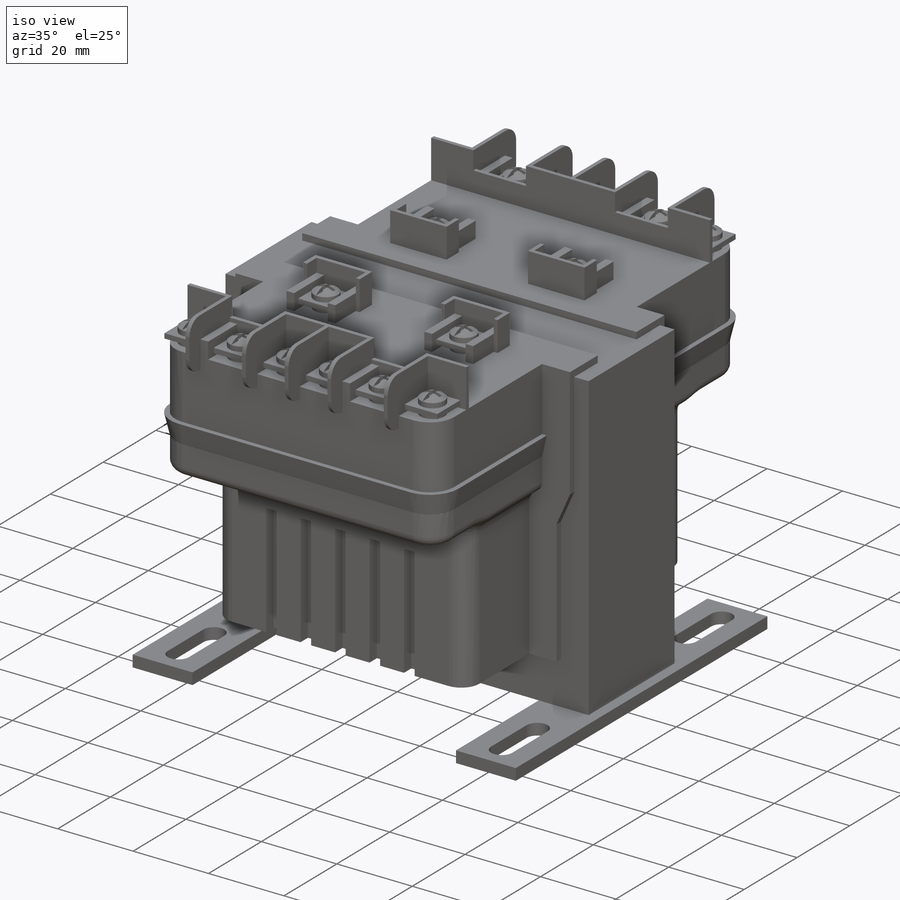
[diagram: iso view]
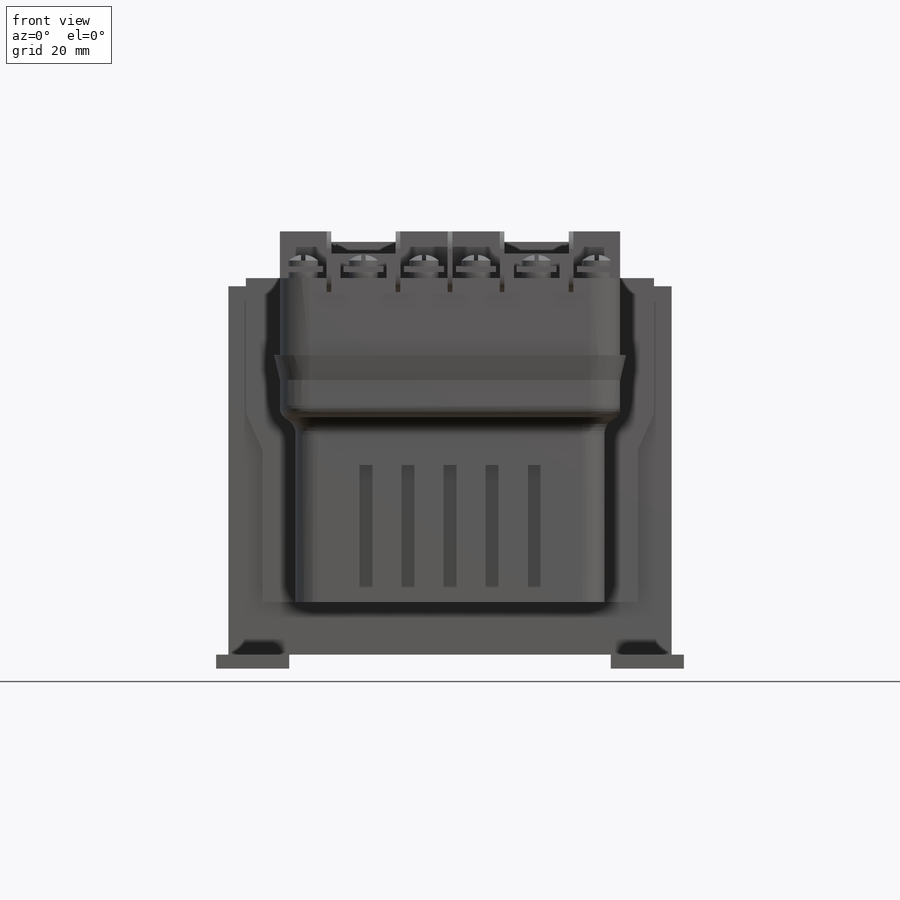
[diagram: front view]
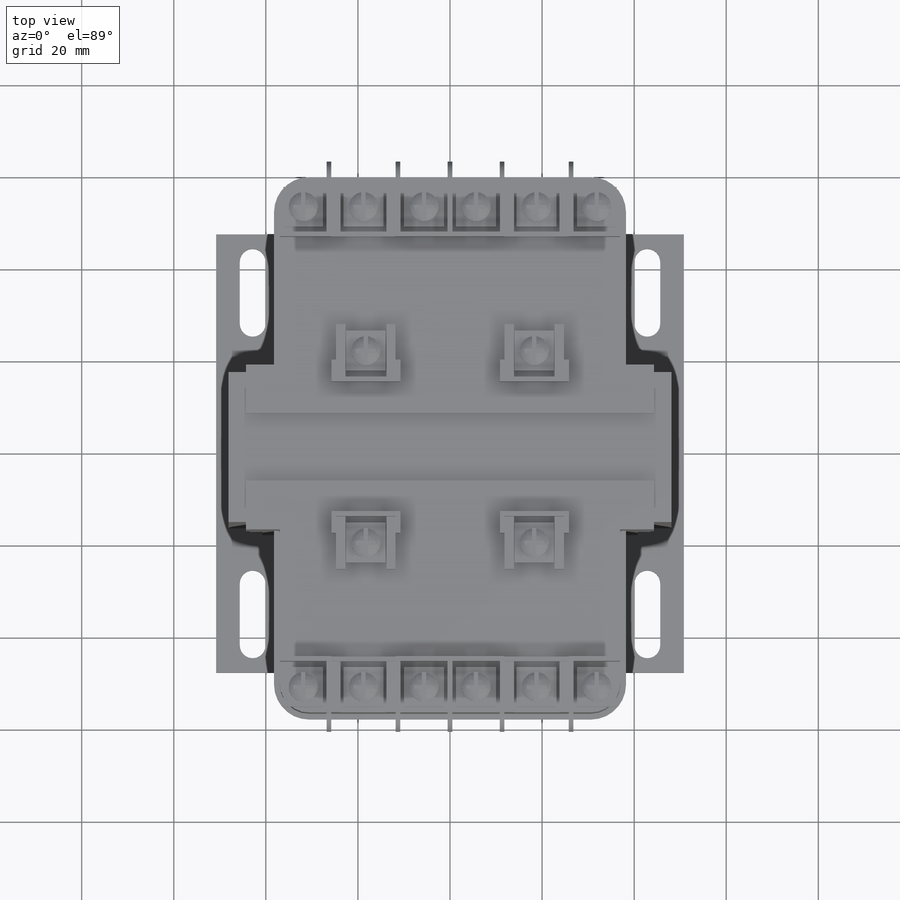
[diagram: top view]
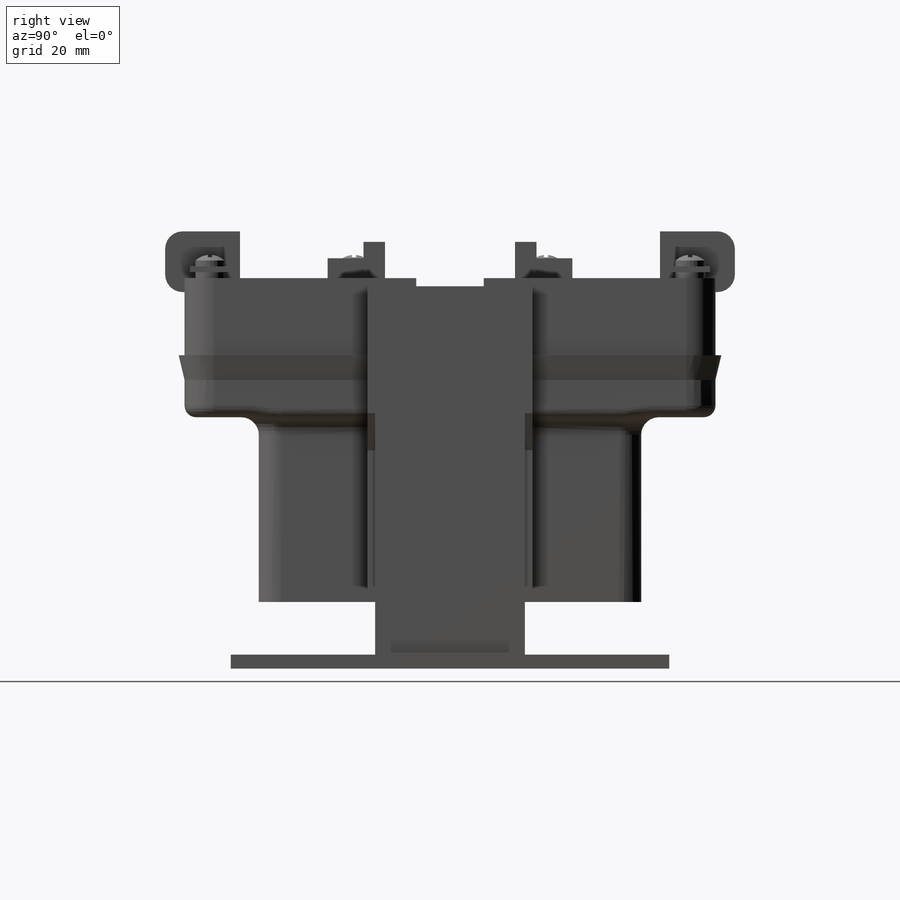
[diagram: right view]
SOLIDWORKS PART (.sldprt)
format: sldprt  version: not decoded by parser v0  size: 1,459,712 bytes
history: native  units: mm
features: sketch x18, extrude x10, dome x8, cut_extrude x6, fillet x4, plane x2, mirror x2, material x1, sweep x1 + 1 further entry (+11 scaffold rows collapsed)
feature tree (64):
  scaffold x11  (default folders/planes/origin — collapsed)
  material  "Plain Carbon Steel"
  sketch  "Sketch2"  dims[c1.D1=~130.476089mm c1.D2=~148.464939mm c2.D1=96.266mm c2.D2=80.01mm]
  extrude  "Boss-Extrude1"  Depth=32.512mm
  sketch  "Sketch3"  dims[c1.D1=~53.611189mm c1.D2=~9.240303mm c2.D1=15.875mm c2.D2=95.25mm c2.D3=101.6mm]
  extrude  "Boss-Extrude2"  Depth=3.048mm
  sketch  "Sketch4"  dims[c1.D2=2.794mm c1.D1=5.588mm c2.D2=~7.816948mm c3.D2=19.05mm c3.D3=69.85mm]
  cut_extrude  "Cut-Extrude1"  [1 undecoded]
  plane  "Plane1"  Offset=11.43mm
  sketch  "Sketch5"  dims[c1.D3=4.826mm c1.D1=~66.191288mm c1.D2=~53.801351mm c2.D1=67.056mm c2.D2=83.058mm]
  extrude  "Boss-Extrude3"  Depth=40.132mm
  sketch  "Sketch7"  dims[c1.D1=~39.558852mm c1.D2=~120.089373mm c2.D1=115.316mm c2.D2=30.226mm]
  extrude  "Boss-Extrude4"  Depth=73.914mm
  fillet  "Fillet1"  Radius=6.35mm
  sketch  "Sketch9"  dims[D1=13.462mm D2=1.27mm D3=5.334mm]
  plane  "Plane2"
  sketch  "Sketch10"  dims[D1=0.0mm]
  sweep  "Sweep6"
  sketch  "Sketch13"  dims[D1=88.646mm D2=81.534mm]
  extrude  "Boss-Extrude5"  Depth=35.814mm
  sketch  "Sketch14"  dims[c1.D1=~20.716869mm c1.D2=88.646mm c2.D1=14.6558mm]
  cut_extrude  "Cut-Extrude2"  [1 undecoded]
  sketch  "Sketch15"  dims[D1=1.016mm D2=10.16mm D3=13.97mm D4=16.256mm D5=4.2164mm D6=4.6736mm D7=47.752mm]
  extrude  "Boss-Extrude6"  Depth=10.16mm
  sketch  "Sketch16"  dims[c1.D1=~2.584487mm c1.D2=13.97mm c2.D1=4.826mm c2.D2=~9.045736mm]
  cut_extrude  "Cut-Extrude3"  [1 undecoded]
  sketch  "Sketch17"  dims[c1.D1=11.0236mm c1.D2=~2.611485mm c2.D1=2.032mm c2.D2=~8.234489mm c2.D3=~2.051068mm c3.D2=12.446mm c3.D3=~4.886025mm]
  extrude  "Boss-Extrude7"  Depth=4.318mm
  sketch  "Sketch18"  dims[c1.D1=6.35mm c1.D2=~8.140759mm c2.D1=~14.57995mm c2.D2=~6.247078mm]
  extrude  "Boss-Extrude8"  Depth=1.27mm
  sketch  "Sketch19"  dims[c1.D1=~7.07116mm c1.D2=~7.683981mm c2.D1=8.636mm c2.D2=8.636mm c2.D3=~8.713356mm c3.D2=8.636mm c3.D3=~8.61969mm c4.D2=~2.984774mm c4.D3=~2.343547mm c5.D2=~2.984774mm c5.D3=~2.455213mm c6.D2=~2.984774mm c6.D3=~2.425726mm c7.D2=~17.099266mm c7.D3=~23.004765mm c8.D2=~17.099266mm c8.D3=18.542mm]
  extrude  "Boss-Extrude9"  Depth=1.27mm
  sketch  "Sketch21"  dims[D1=~21.814538mm]
  extrude  "Boss-Extrude10"  Depth=1.27mm
  dome  "Dome1"
  dome  "Dome2"
  dome  "Dome3"
  dome  "Dome4"
  dome  "Dome5"
  dome  "Dome6"
  dome  "Dome7"
  dome  "Dome8"
  sketch  "Sketch22"  dims[c1.D1=~7.365005mm c1.D2=~1.503507mm c2.D1=~0.936968mm c2.D2=~4.379781mm c3.D1=~0.762178mm]
  cut_extrude  "Cut-Extrude4"  Depth=6.35mm
  "Sketch-Pattern3"
  sketch  "Sketch23"  dims[c1.D1=~2.533179mm c1.D2=4.6736mm c2.D1=7.874mm]
  cut_extrude  "Cut-Extrude5"  [1 undecoded]
  fillet  "Fillet2"  Radius=3.81mm
  fillet  "Fillet3"  Radius=3.81mm
  fillet  "Fillet4"  Radius=2.54mm
  sketch  "Sketch25"  dims[c1.D1=~1.942832mm c1.D2=~6.022419mm c2.D1=2.794mm c2.D3=12.7mm c2.D4=6.35mm c3.D3=~22.632434mm c3.D2=5.0]
  cut_extrude  "Cut-Extrude6"  Depth=29.718mm
  mirror  "Mirror2"
  mirror  "Mirror3"
decode coverage: 34 of 49 modeling features carry decoded parameters; 1 rows unclassified (native names shown)
note: ~ marks probable driven/reference dimensions
note: 4 parameter values undecoded
summary: no parameter record found for 4 features
note: suppression state not decoded; provenance and decode notes live in map.json
